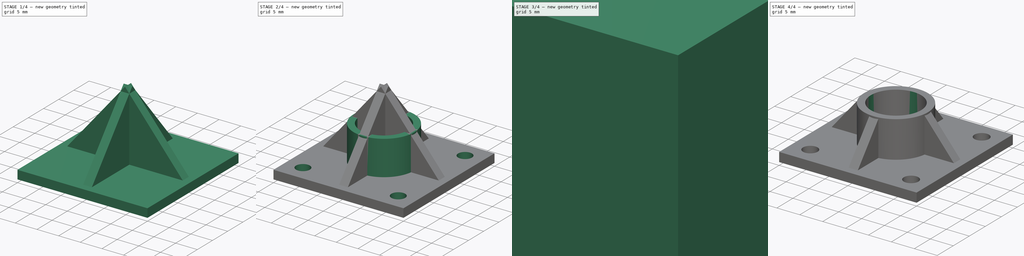
[diagram: build sequence overview — one tinted view per stage of 4, left to right]
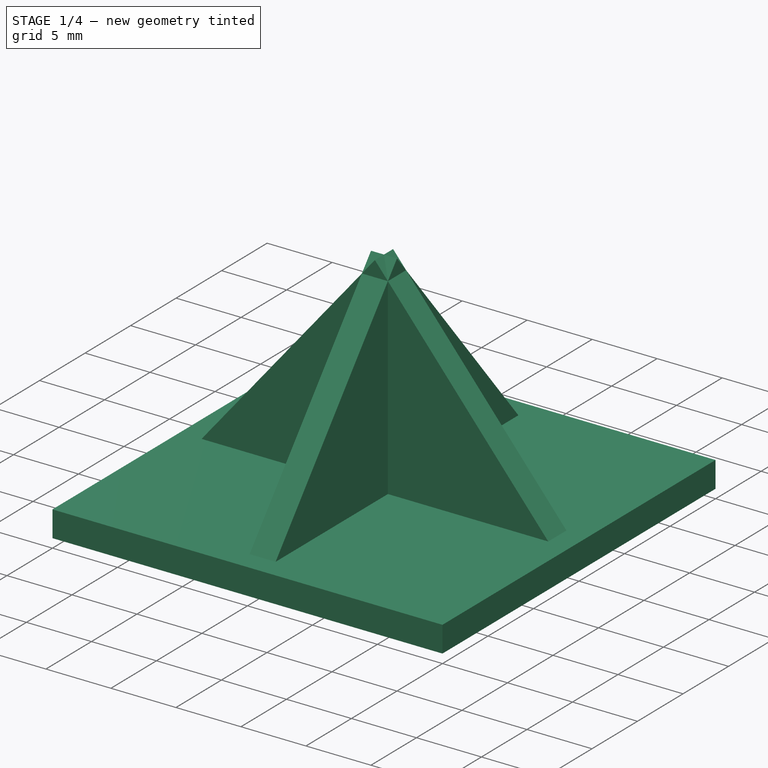
[diagram: stage 1 of 4 — iso view after this stage's code; geometry added in this stage tinted green]
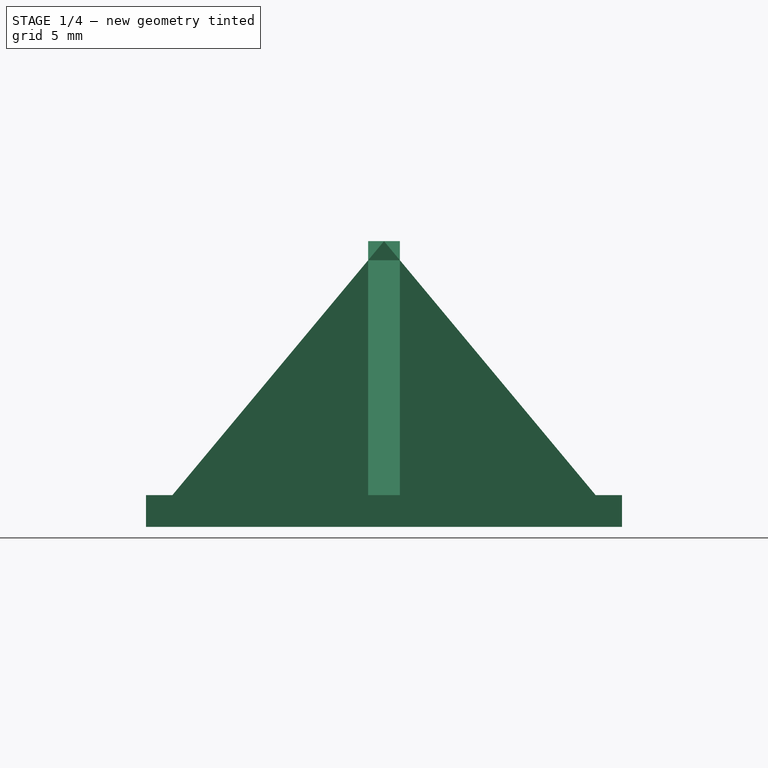
[diagram: stage 1 of 4 — front view after this stage's code; geometry added in this stage tinted green]
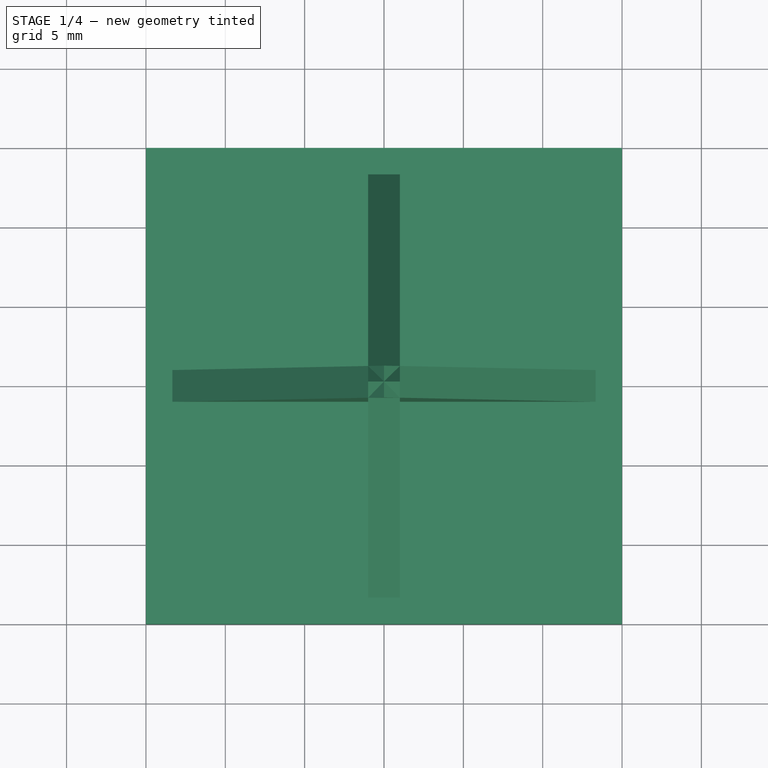
[diagram: stage 1 of 4 — top view after this stage's code; geometry added in this stage tinted green]
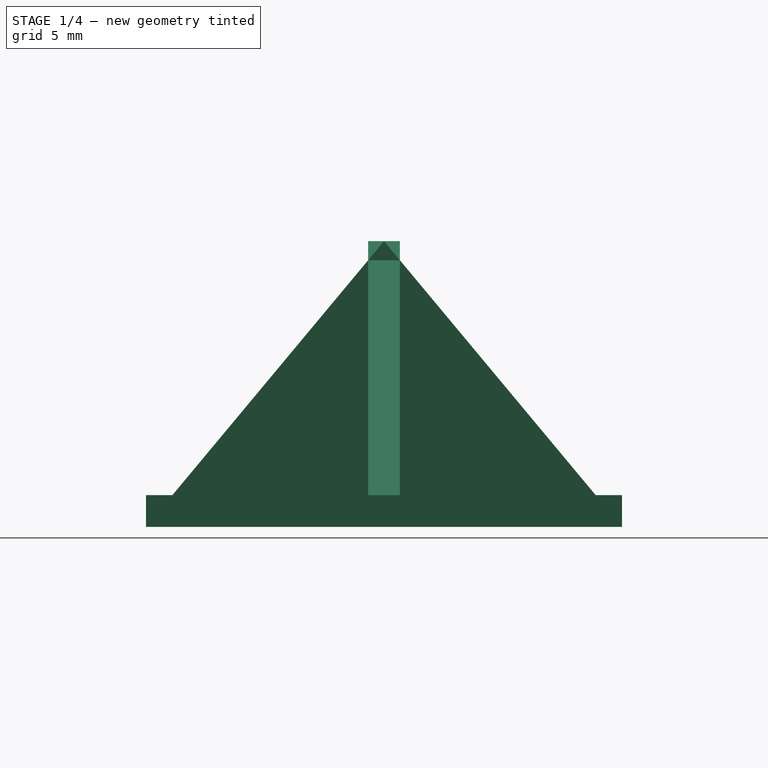
[diagram: stage 1 of 4 — right view after this stage's code; geometry added in this stage tinted green]
FCSTD DOCUMENT  (FreeCAD 0.16R6706 (Git))
Label: pillarholder
License: All rights reserved
LicenseURL: http://en.wikipedia.org/wiki/All_rights_reserved
objects: Sketcher::SketchObject×4, Part::Cylinder×2, PartDesign::Pocket×2, Part::Box×2, PartDesign::Pad×2, Part::Cut×2, Part::MultiFuse×1
note: 19 computed .brp shape members not serialized (recipe doc carries the construction recipe); baked Part::Feature solids carry a one-line shape summary decoded from their .brp

FEATURE [Part::Box] Box  label="Cube"
  Height = 2
  Length = 30
  Placement = pos=(-15,-15,0) rot=(0,0,1;0rad)
  Width = 30
FEATURE [Sketcher::SketchObject] Sketch002
  Placement = pos=(0,1,0) rot=(1,0,0;1.5708rad)
  sketch-geometry (3):
    g0: LineSegment StartX=-15 StartY=0 StartZ=0 EndX=0 EndY=18 EndZ=0
    g1: LineSegment StartX=0 StartY=18 StartZ=0 EndX=15 EndY=0 EndZ=0
    g2: LineSegment StartX=15 StartY=0 StartZ=0 EndX=-15 EndY=0 EndZ=0
  constraints (9):
    c: PointOnObject(g0,g-1)
    c: PointOnObject(g0,g-2)
    c: Coincident(g0,g1)
    c: Coincident(g1,g2)
    c: Coincident(g2,g0)
    c: Horizontal(g2)
    c: Symmetric(g0,g1,g-2)
    c: DistanceX(g2,g2) = 30
    c: DistanceY(g0) = 18
FEATURE [PartDesign::Pad] Pad
  Length = 2
  Length2 = 100
  Placement = pos=(0,1,0) rot=(1,0,0;1.5708rad)
  Sketch = -> Sketch002
  Type = 0
FEATURE [Sketcher::SketchObject] Sketch003
  Placement = pos=(-1,0,0) rot=(0.57735,0.57735,0.57735;2.0944rad)
  sketch-geometry (3):
    g0: LineSegment StartX=-15 StartY=0 StartZ=0 EndX=0 EndY=18 EndZ=0
    g1: LineSegment StartX=0 StartY=18 StartZ=0 EndX=15 EndY=0 EndZ=0
    g2: LineSegment StartX=15 StartY=0 StartZ=0 EndX=-15 EndY=0 EndZ=0
  constraints (9):
    c: PointOnObject(g0,g-1)
    c: PointOnObject(g0,g-2)
    c: Coincident(g0,g1)
    c: Coincident(g1,g2)
    c: Coincident(g2,g0)
    c: Horizontal(g2)
    c: Symmetric(g0,g1,g-2)
    c: DistanceX(g2,g2) = 30
    c: DistanceY(g0) = 18
FEATURE [PartDesign::Pad] Pad001
  Length = 2
  Length2 = 100
  Placement = pos=(-1,0,0) rot=(0.57735,0.57735,0.57735;2.0944rad)
  Sketch = -> Sketch003
  Type = 0
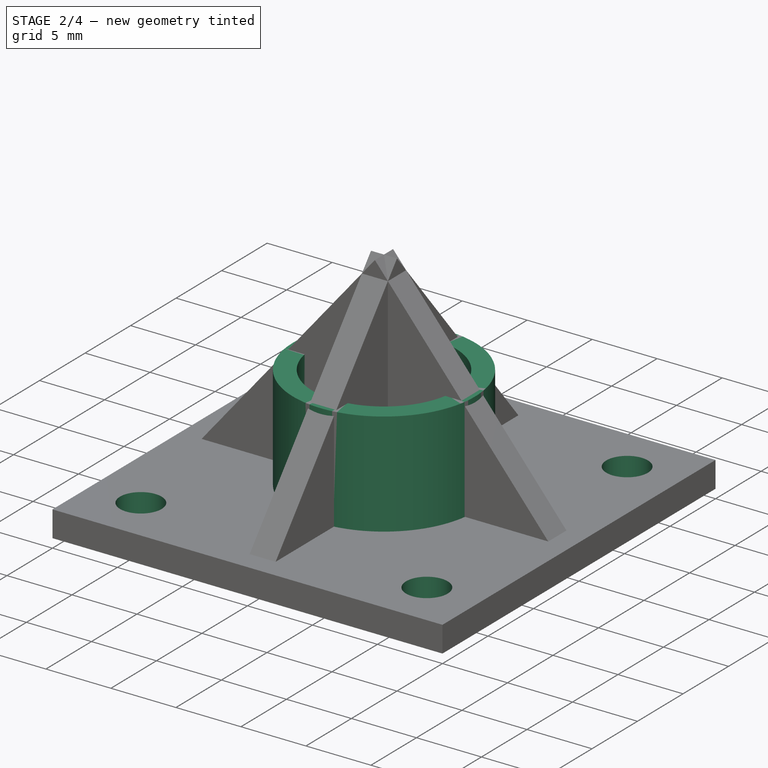
[diagram: stage 2 of 4 — iso view after this stage's code; geometry added in this stage tinted green]
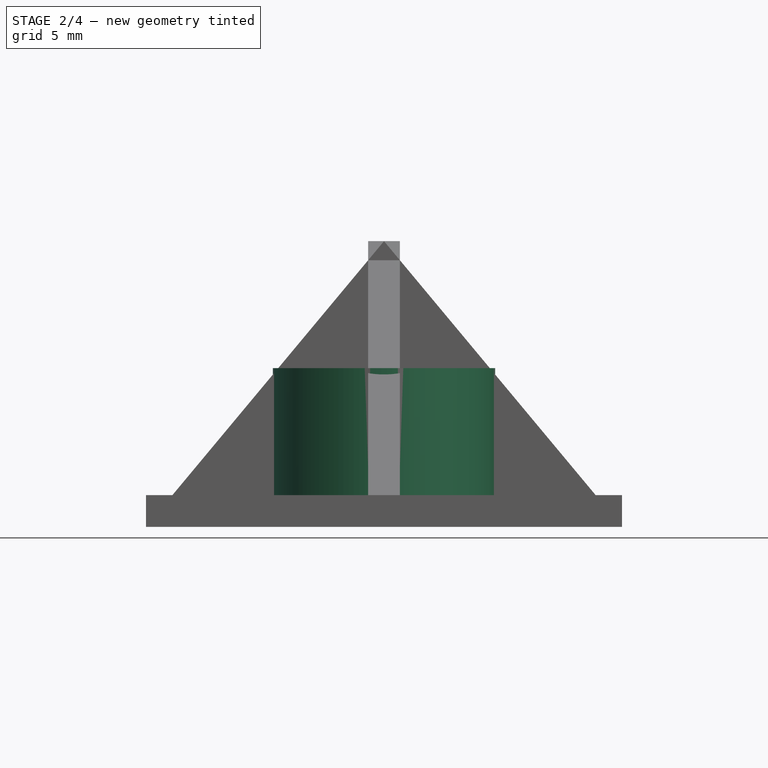
[diagram: stage 2 of 4 — front view after this stage's code; geometry added in this stage tinted green]
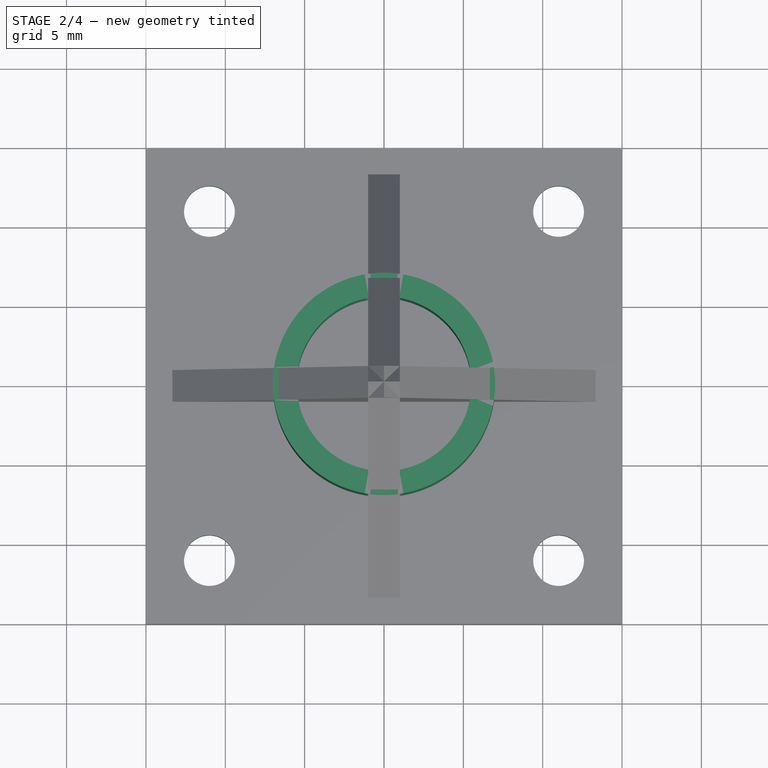
[diagram: stage 2 of 4 — top view after this stage's code; geometry added in this stage tinted green]
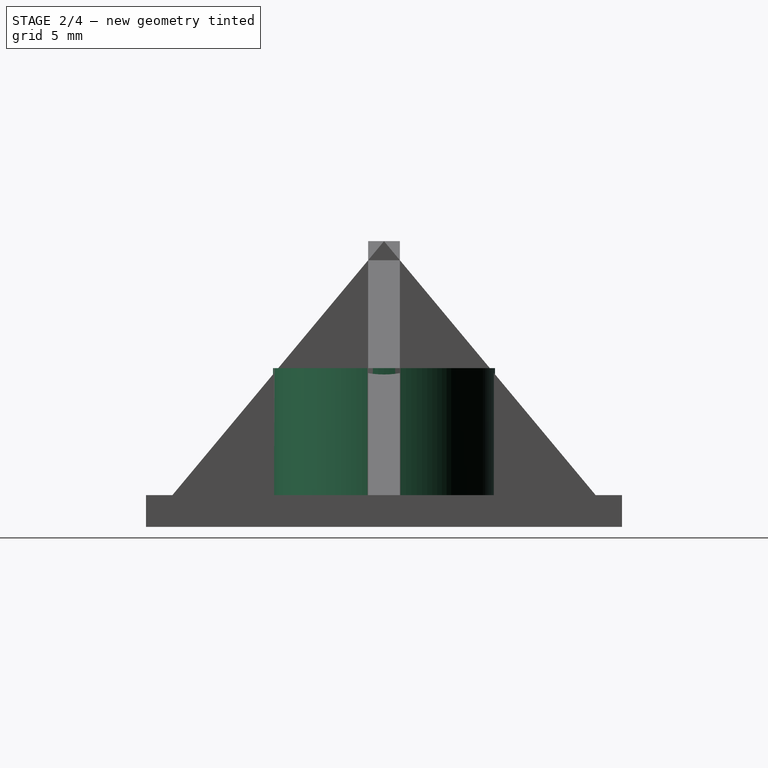
[diagram: stage 2 of 4 — right view after this stage's code; geometry added in this stage tinted green]
FEATURE [Part::Cylinder] Cylinder
  Angle = 360
  Height = 10
  Radius = 7
FEATURE [Sketcher::SketchObject] Sketch
  Placement = pos=(0,0,10) rot=(0,0,1;0rad)
  Support = -> Cylinder [Face2]
  sketch-geometry (1):
    g0: Circle CenterX=0 CenterY=0 CenterZ=0 NormalX=0 NormalY=0 NormalZ=1 Radius=5.5
  constraints (2):
    c: Coincident(g0,g-1)
    c: Radius(g0) = 5.5
FEATURE [PartDesign::Pocket] Pocket
  Length = 5
  Sketch = -> Sketch
  Type = 1
FEATURE [Sketcher::SketchObject] Sketch001
  Placement = pos=(-15,-15,2) rot=(0,0,1;0rad)
  Support = -> Box [Face6]
  sketch-geometry (4):
    g0: Circle CenterX=4 CenterY=4 CenterZ=0 NormalX=0 NormalY=0 NormalZ=1 Radius=1.6
    g1: Circle CenterX=26 CenterY=26 CenterZ=0 NormalX=0 NormalY=0 NormalZ=1 Radius=1.6
    g2: Circle CenterX=26 CenterY=4 CenterZ=0 NormalX=0 NormalY=0 NormalZ=1 Radius=1.6
    g3: Circle CenterX=4 CenterY=26 CenterZ=0 NormalX=0 NormalY=0 NormalZ=1 Radius=1.6
  constraints (12):
    c: Radius(g0) = 1.6
    c: DistanceX(g0) = 4
    c: DistanceY(g0) = 4
    c: DistanceY(g1) = 26
    c: Equal(g3,g1)
    c: Equal(g1,g2)
    c: Equal(g2,g0)
    c: DistanceX(g3) = 4
    c: DistanceY(g3) = 26
    c: DistanceX(g1) = 26
    c: DistanceX(g2) = 26
    c: DistanceY(g2) = 4
FEATURE [PartDesign::Pocket] Pocket001
  Length = 5
  Placement = pos=(-15,-15,0) rot=(0,0,1;0rad)
  Sketch = -> Sketch001
  Type = 1
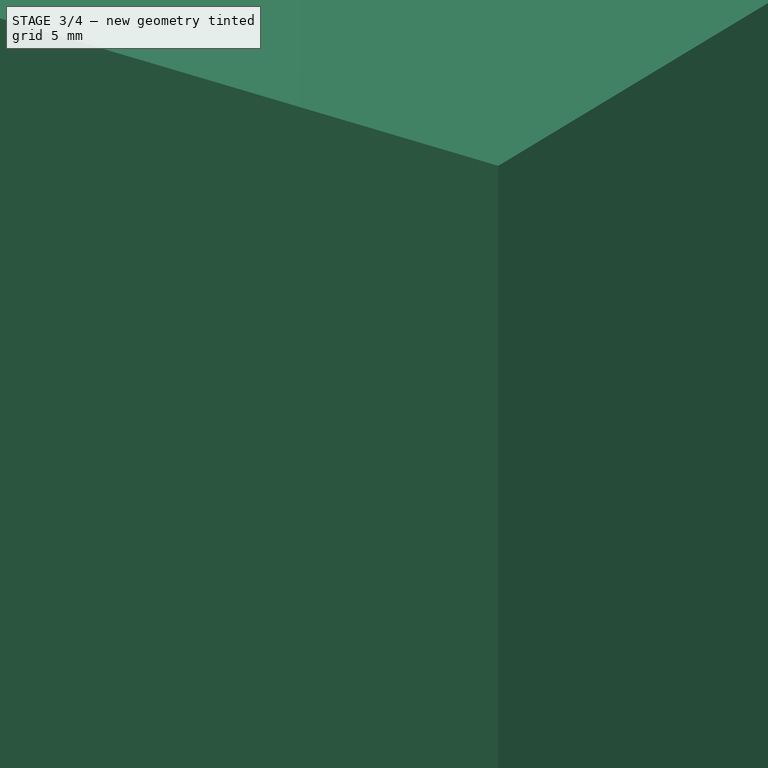
[diagram: stage 3 of 4 — iso view after this stage's code; geometry added in this stage tinted green]
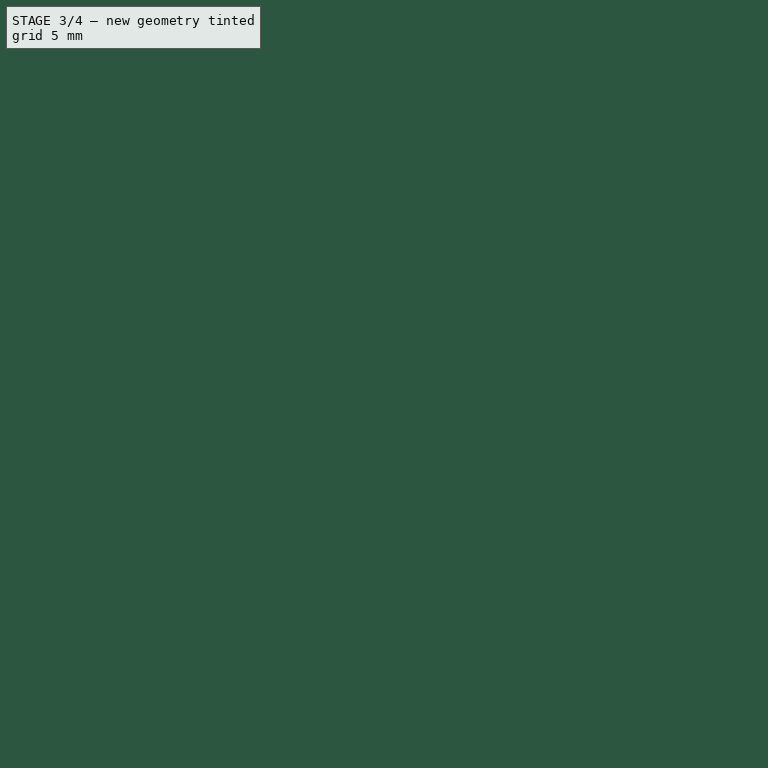
[diagram: stage 3 of 4 — front view after this stage's code; geometry added in this stage tinted green]
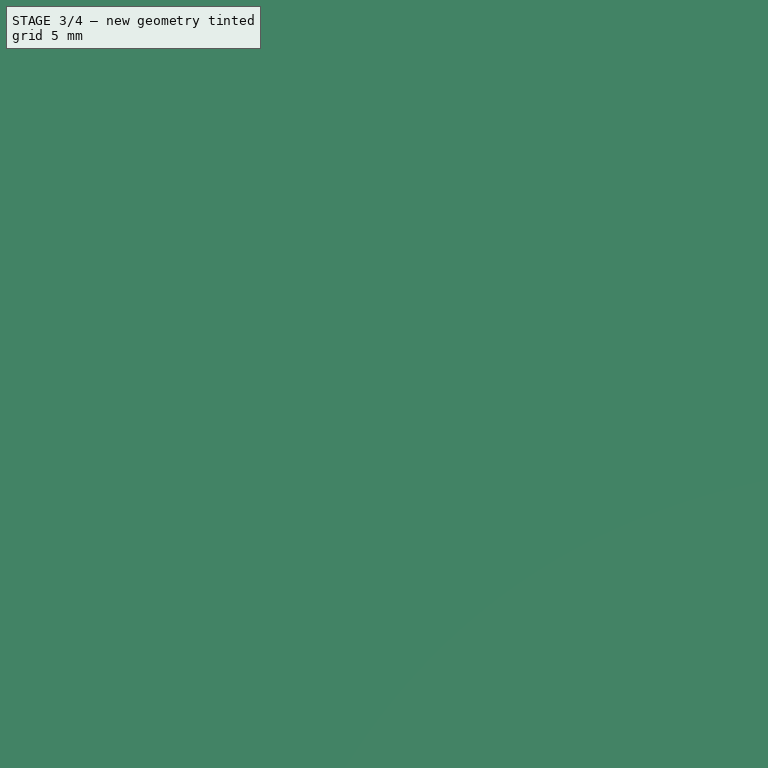
[diagram: stage 3 of 4 — top view after this stage's code; geometry added in this stage tinted green]
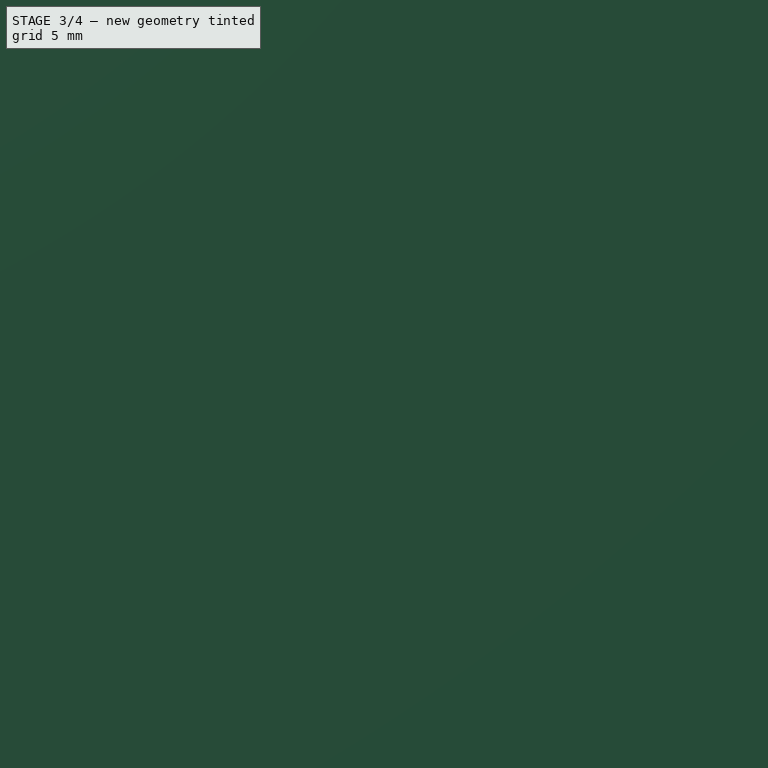
[diagram: stage 3 of 4 — right view after this stage's code; geometry added in this stage tinted green]
FEATURE [Part::Box] Box001  label="Cube001"
  Height = 60
  Length = 60
  Placement = pos=(-30,-30,10) rot=(0,0,1;0rad)
  Width = 60
FEATURE [Part::MultiFuse] Fusion
  Shapes = -> [Pocket001,Pad,Pad001,Pocket]
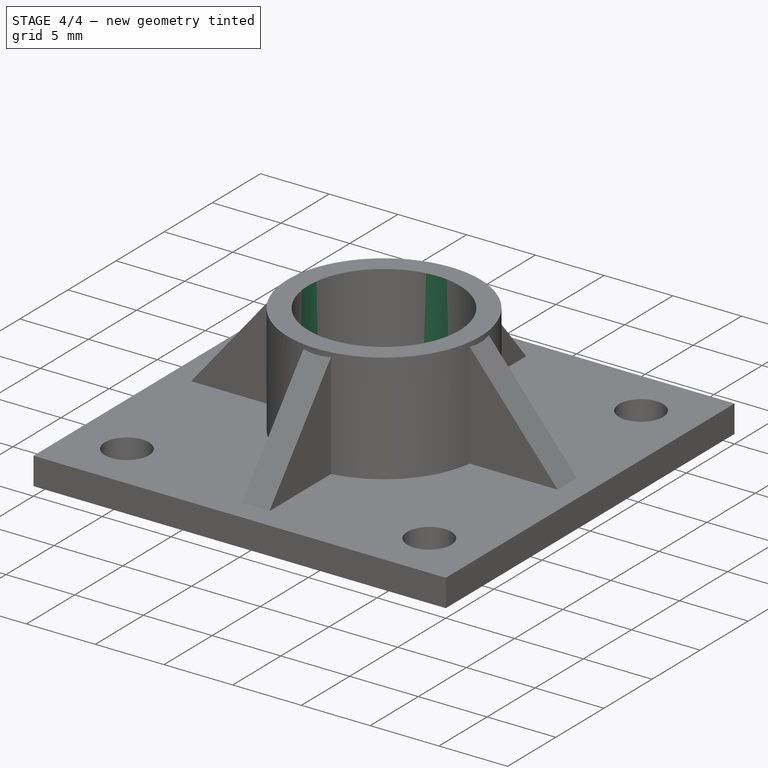
[diagram: stage 4 of 4 — iso view after this stage's code; geometry added in this stage tinted green]
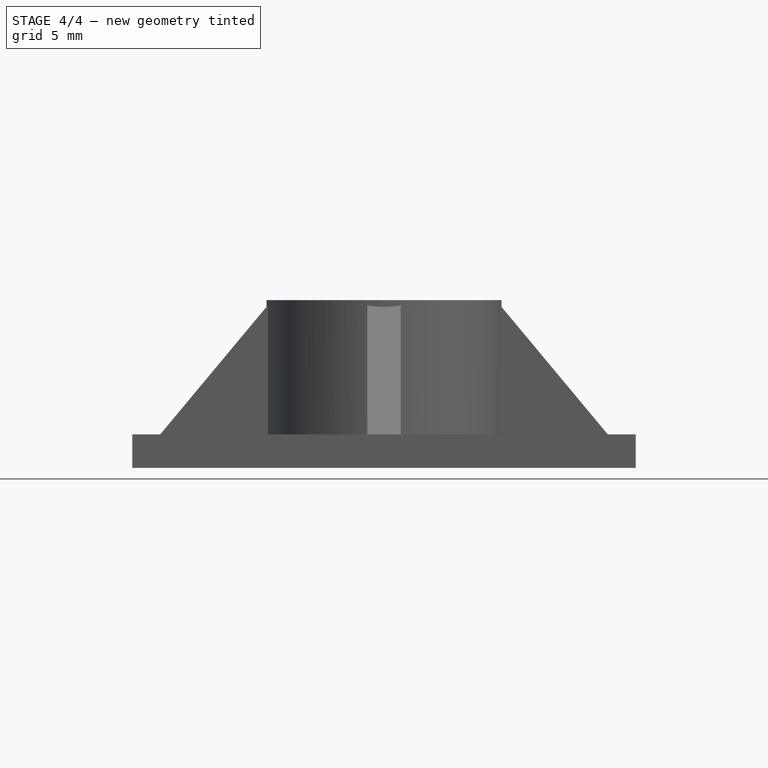
[diagram: stage 4 of 4 — front view after this stage's code; geometry added in this stage tinted green]
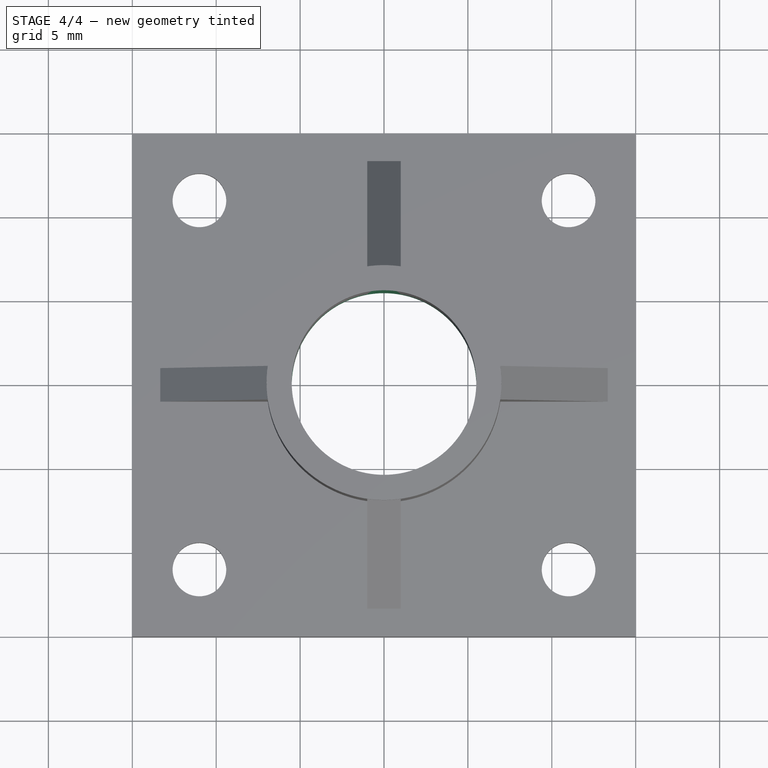
[diagram: stage 4 of 4 — top view after this stage's code; geometry added in this stage tinted green]
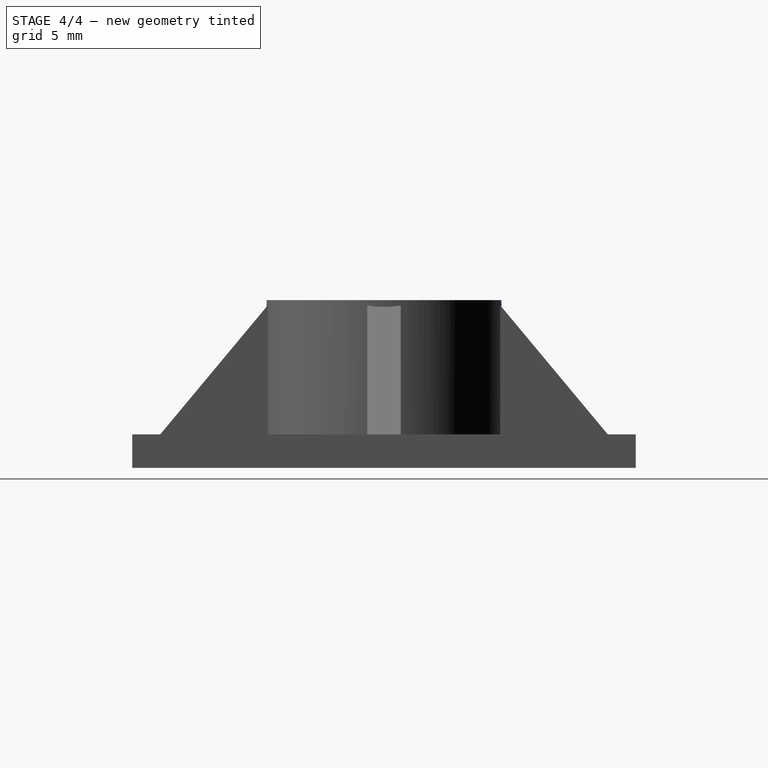
[diagram: stage 4 of 4 — right view after this stage's code; geometry added in this stage tinted green]
FEATURE [Part::Cylinder] Cylinder001
  Angle = 360
  Height = 10
  Radius = 5.5
FEATURE [Part::Cut] Cut
  Base = -> Fusion
  Tool = -> Box001
FEATURE [Part::Cut] Cut001
  Base = -> Cut
  Tool = -> Cylinder001
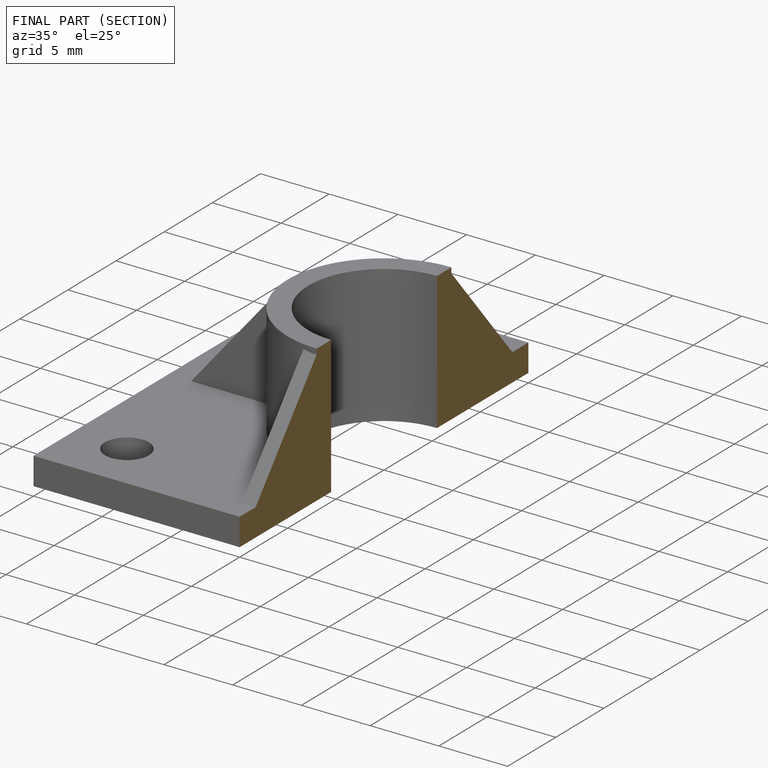
[diagram: finished part — half-section view (interior)]
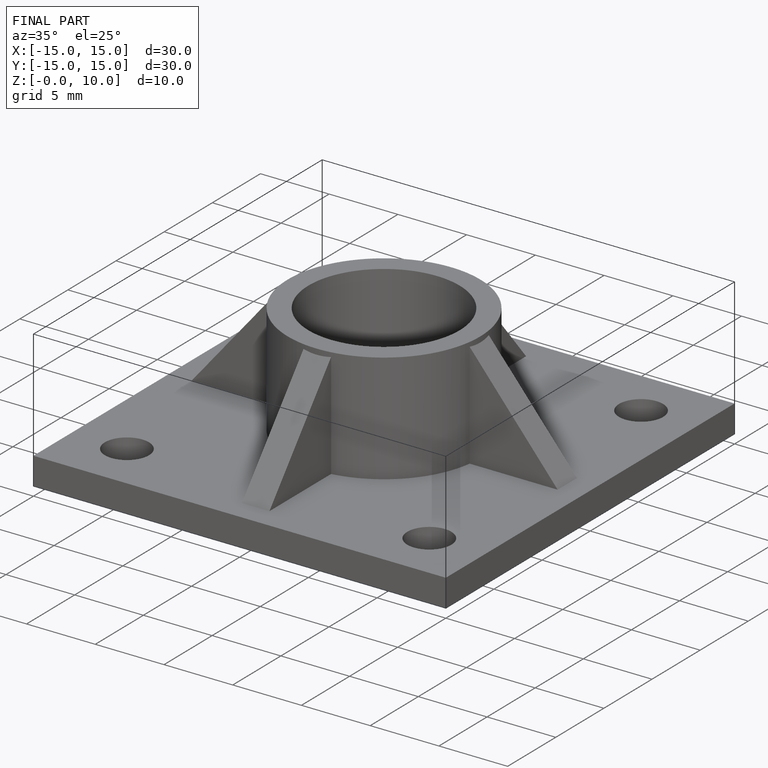
[diagram: finished part — iso view with bounding-box wireframe]
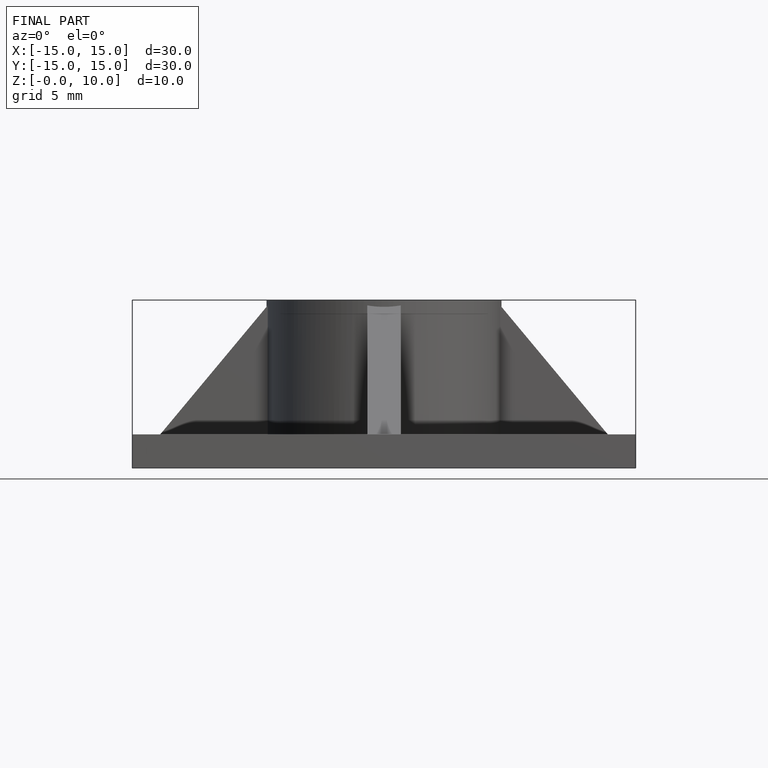
[diagram: finished part — front view with bounding-box wireframe]
